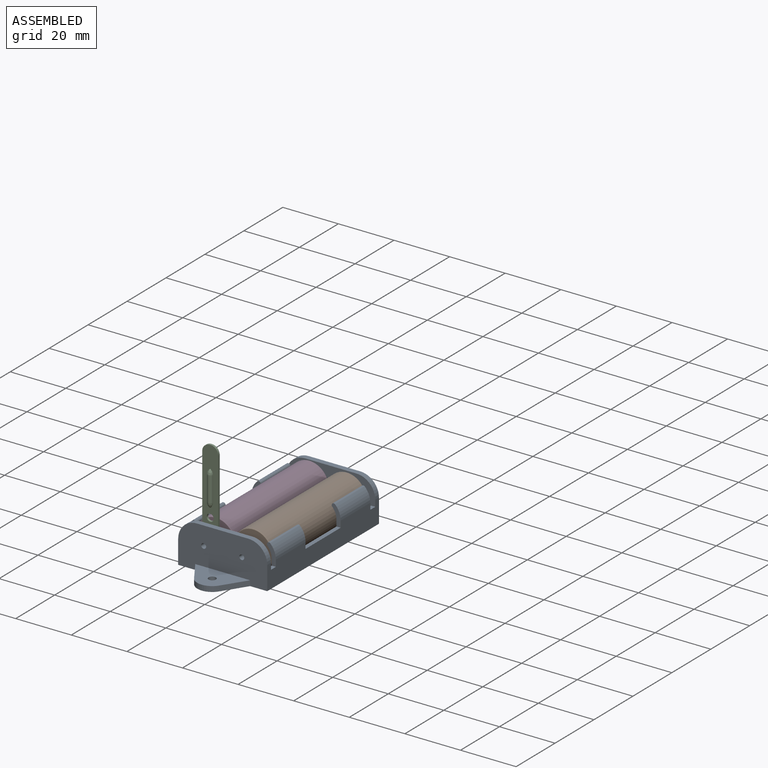
[diagram: assembled view]
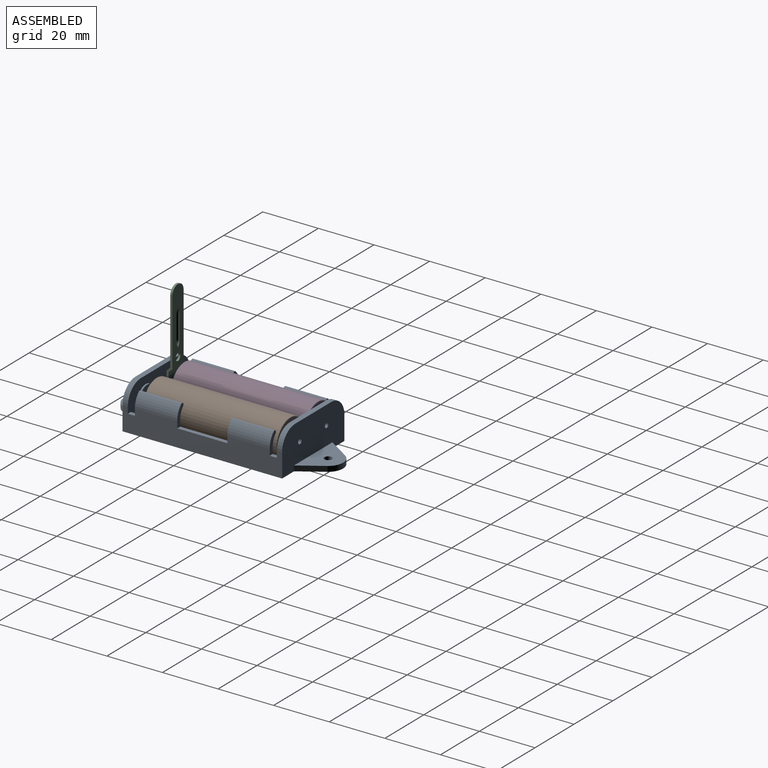
[diagram: assembled view, second angle]
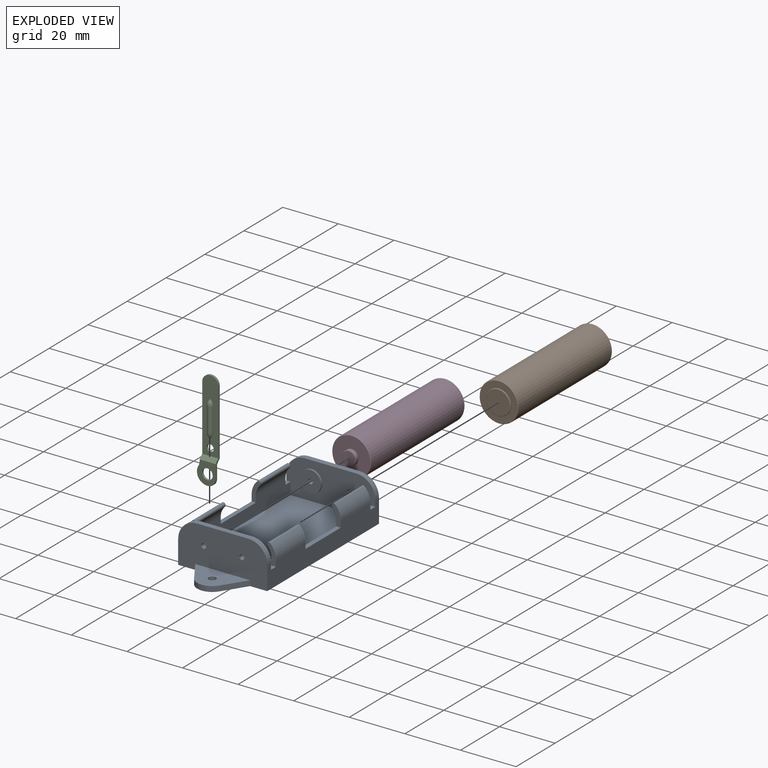
[diagram: exploded view]
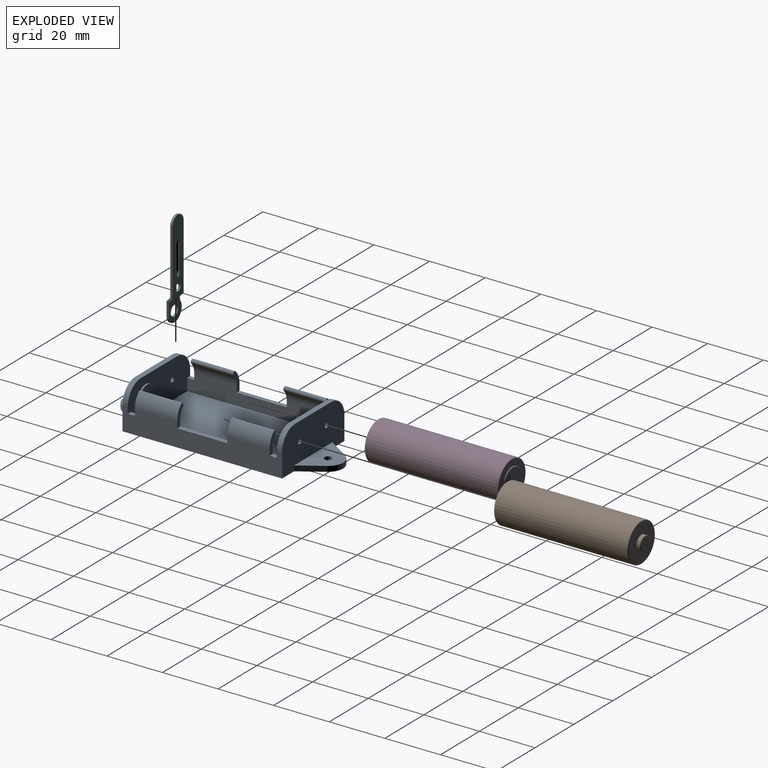
[diagram: exploded view, second angle]
ASSEMBLY  parts=4 mates=5
PART A: 60 faces, bbox 32x78.9x15.2 mm
  f0: plane 32.03x13.34mm, normal (0,1,0), area 346.4mm2, adj f2,f3,f5,f8,f14,f29,f33,f37
  f1: plane 32.03x13.34mm, normal (0,-1,0), area 346.4mm2, adj f2,f3,f4,f7,f14,f31,f33,f37
  f2: plane 57.4x8.51mm, normal (-1,0,0), area 435.6mm2, adj f0,f1,f7,f8,f9,f19,f23,f27
  f3: plane 57.4x8.51mm, normal (1,0,0), area 435.6mm2, adj f0,f1,f4,f5,f6,f19,f23,f27
  f4: cylinder r=6.73mm len=6.81mm, axis (0,-1,0), area 20.3mm2, adj f1,f3,f19,f31
  f5: cylinder r=6.73mm len=6.81mm, axis (0,-1,0), area 20.3mm2, adj f0,f3,f23,f29
  f6: cylinder r=6.73mm len=15.24mm, axis (0,-1,0), area 81mm2, adj f3,f12,f40,f44
  f7: cylinder r=6.73mm len=6.81mm, axis (0,-1,0), area 20.3mm2, adj f1,f2,f19,f31
  f8: cylinder r=6.73mm len=6.81mm, axis (0,-1,0), area 20.3mm2, adj f0,f2,f23,f29
  f9: cylinder r=6.73mm len=15.24mm, axis (0,-1,0), area 81.1mm2, adj f2,f10,f45,f50
  f10: cylinder r=0.76mm len=15.24mm, axis (0,1,0), area 36.5mm2, adj f9,f11,f45,f50
  f11: cylinder r=5.21mm len=15.24mm, axis (0,1,0), area 62.8mm2, adj f10,f33,f45,f50
  f12: cylinder r=0.72mm len=15.24mm, axis (0,1,0), area 35.7mm2, adj f6,f13,f40,f44
  f13: cylinder r=5.57mm len=15.24mm, axis (0,1,0), area 61.7mm2, adj f12,f37,f40,f44
  f14: plane 53.59x28.98mm, normal (0,0,1), area 1553.2mm2, adj f0,f1,f33,f37
  f15: plane 19.74x10.73mm, normal (0,0,1), area 129mm2, adj f16,f17,f18,f19,f24
  f16: plane 8.28x5.36mm, normal (0.84,0.54,0), area 18.8mm2, adj f15,f17,f19,f27
  f17: cylinder r=5.37mm len=9.01mm, axis (0,0,-1), area 20.4mm2, adj f15,f16,f18,f27
  f18: plane 8.28x5.36mm, normal (-0.84,0.54,0), area 18.8mm2, adj f15,f17,f19,f27
  f19: plane 32.03x15.24mm, normal (0,1,0), area 426.1mm2, adj f2,f3,f4,f7,f15,f16,f18,f27
  f20: plane 8.28x5.36mm, normal (-0.84,-0.54,0), area 18.8mm2, adj f21,f23,f26,f27
  f21: cylinder r=5.37mm len=9.01mm, axis (0,0,-1), area 20.4mm2, adj f20,f22,f26,f27
  f22: plane 8.28x5.36mm, normal (0.84,-0.54,0), area 18.8mm2, adj f21,f23,f26,f27
  f23: plane 32.03x15.24mm, normal (0,-1,0), area 426.1mm2, adj f2,f3,f5,f8,f20,f22,f26,f27
  f24: cylinder r=1.33mm len=2.67mm, axis (0,0,-1), area 16mm2, adj f15,f27
  f25: cylinder r=1.33mm len=2.67mm, axis (0,0,-1), area 16mm2, adj f26,f27
  f26: plane 19.74x10.73mm, normal (0,0,1), area 129mm2, adj f20,f21,f22,f23,f25
  f27: plane 78.87x32.03mm, normal (0,0,-1), area 2096.6mm2, adj f2,f3,f16,f17,f18,f19,f20,f21
  f28: cylinder r=6.73mm len=15.24mm, axis (0,-1,0), area 81mm2, adj f3,f35,f38,f41
  f29: plane 18.42x1.91mm, normal (0,0,1), area 35.1mm2, adj f0,f5,f8,f23
  f30: cylinder r=6.73mm len=15.24mm, axis (0,-1,0), area 81.1mm2, adj f2,f32,f47,f49
  f31: plane 18.42x1.91mm, normal (0,0,1), area 35.1mm2, adj f1,f4,f7,f19
  f32: cylinder r=0.76mm len=15.24mm, axis (0,1,0), area 36.5mm2, adj f30,f34,f47,f49
  f33: plane 53.59x6.6mm, normal (1,0,0), area 301.1mm2, adj f0,f1,f11,f14,f34,f45,f46,f47
  f34: cylinder r=5.21mm len=15.24mm, axis (0,1,0), area 62.8mm2, adj f32,f33,f47,f49
  f35: cylinder r=0.72mm len=15.24mm, axis (0,1,0), area 35.7mm2, adj f28,f36,f38,f41
  f36: cylinder r=5.57mm len=15.24mm, axis (0,1,0), area 61.7mm2, adj f35,f37,f38,f41
  f37: plane 53.59x6.6mm, normal (-1,0,0), area 301.1mm2, adj f0,f1,f13,f14,f36,f38,f39,f40
  f38: plane 7.27x3.21mm, normal (0,1,0), area 11.3mm2, adj f3,f28,f35,f36,f37,f39
  f39: plane 18.03x1.52mm, normal (0,0,1), area 27.5mm2, adj f3,f37,f38,f40
  f40: plane 7.27x3.21mm, normal (0,-1,0), area 11.3mm2, adj f3,f6,f12,f13,f37,f39
  f41: plane 7.27x3.21mm, normal (0,-1,0), area 11.3mm2, adj f3,f28,f35,f36,f37,f42
  f42: plane 2.54x1.52mm, normal (0,0,1), area 3.9mm2, adj f0,f3,f37,f41
  f43: plane 2.54x1.52mm, normal (0,0,1), area 3.9mm2, adj f1,f3,f37,f44
  f44: plane 7.27x3.21mm, normal (0,1,0), area 11.3mm2, adj f3,f6,f12,f13,f37,f43
  f45: plane 7.29x3.3mm, normal (0,-1,0), area 11.6mm2, adj f2,f9,f10,f11,f33,f46
  f46: plane 18.03x1.52mm, normal (0,0,1), area 27.5mm2, adj f2,f33,f45,f47
  f47: plane 7.29x3.3mm, normal (0,1,0), area 11.6mm2, adj f2,f30,f32,f33,f34,f46
  f48: plane 2.54x1.52mm, normal (0,0,1), area 3.9mm2, adj f0,f2,f33,f49
  f49: plane 7.29x3.3mm, normal (0,-1,0), area 11.6mm2, adj f2,f30,f32,f33,f34,f48
  f50: plane 7.29x3.3mm, normal (0,1,0), area 11.6mm2, adj f2,f9,f10,f11,f33,f51
  f51: plane 2.54x1.52mm, normal (0,0,1), area 3.9mm2, adj f1,f2,f33,f50
  f52: cylinder r=0.89mm len=1.91mm, axis (0,-1,0), area 10.6mm2, adj f1,f19
  f53: cylinder r=0.89mm len=2.54mm, axis (0,-1,0), area 14.2mm2, adj f19,f55
  f54: cylinder r=3.81mm len=7.62mm, axis (0,1,0), area 15.2mm2, adj f1,f55
  f55: plane 7.62x7.62mm, normal (0,-1,0), area 43.1mm2, adj f53,f54
  f56: cylinder r=0.89mm len=2.54mm, axis (0,1,0), area 14.2mm2, adj f23,f59
  f57: cylinder r=0.89mm len=1.91mm, axis (0,1,0), area 10.6mm2, adj f0,f23
  f58: cylinder r=3.81mm len=7.62mm, axis (0,-1,0), area 15.2mm2, adj f0,f59
  f59: plane 7.62x7.62mm, normal (0,1,0), area 43.1mm2, adj f56,f58
PART B: 11 faces, bbox 15.1x15.1x50 mm
  f0: cylinder r=7mm len=47.75mm, axis (0,0,-1), area 2099.6mm2, adj f9,f10
  f1: plane 13.49x13.49mm, normal (0,0,1), area 122.2mm2, adj f5,f10
  f2: plane 13.49x13.49mm, normal (0,0,-1), area 80.8mm2, adj f3,f9
  f3: cylinder r=4.45mm len=8.89mm, axis (0,0,1), area 3.5mm2, adj f2,f8
  f4: plane 8.38x8.38mm, normal (0,0,-1), area 55.2mm2, adj f8
  f5: cylinder r=2.57mm len=5.13mm, axis (0,0,-1), area 18.4mm2, adj f1,f7
  f6: plane 4.62x4.62mm, normal (0,0,1), area 16.8mm2, adj f7
  f7: torus R=2.31mm, axis (0,0,1), area 6.2mm2, adj f5,f6
  f8: torus R=4.19mm, axis (0,0,-1), area 10.9mm2, adj f3,f4
  f9: torus R=6.74mm, axis (0,0,1), area 17.3mm2, adj f0,f2
  f10: torus R=6.74mm, axis (0,0,1), area 17.3mm2, adj f0,f1
PART C: 23 faces, bbox 2.1x35.4x6.7 mm
  f0: plane 26.57x5.77mm, normal (1,0,0), area 127.3mm2, adj f1,f5,f7,f9,f10,f11,f16,f20
  f1: plane 0.76x0.18mm, normal (0,1,0), area 0.1mm2, adj f0,f3,f10,f11
  f2: plane 0.76x0.18mm, normal (0,-1,0), area 0.1mm2, adj f6,f8,f12,f13
  f3: plane 26.26x5.77mm, normal (-1,0,0), area 120.7mm2, adj f1,f4,f7,f9,f10,f11,f16,f17
  f4: plane 5.77x1.35mm, normal (-0.71,0.71,0), area 11mm2, adj f3,f6,f7,f9
  f5: plane 5.77x1.35mm, normal (0.71,-0.71,0), area 11mm2, adj f0,f7,f8,f9
  f6: plane 7.83x6.73mm, normal (-1,0,0), area 34.4mm2, adj f2,f4,f7,f9,f12,f13,f14,f15
  f7: plane 25.54x2.11mm, normal (0,0,-1), area 19.9mm2, adj f0,f3,f4,f5,f6,f8,f10,f14
  f8: plane 7.51x6.73mm, normal (1,0,0), area 32.5mm2, adj f2,f5,f7,f9,f12,f13,f14,f15
  f9: plane 29.85x2.11mm, normal (0,0,1), area 23.2mm2, adj f0,f3,f4,f5,f6,f8,f11,f12
  f10: cylinder r=2.79mm len=2.79mm, axis (1,0,0), area 3.3mm2, adj f0,f1,f3,f7
  f11: cylinder r=2.79mm len=2.79mm, axis (-1,0,0), area 3.3mm2, adj f0,f1,f3,f9
  f12: cylinder r=2.79mm len=2.79mm, axis (1,0,0), area 3.3mm2, adj f2,f6,f8,f9
  f13: cylinder r=3.76mm len=5.75mm, axis (1,0,0), area 6.1mm2, adj f2,f6,f8,f14
  f14: cylinder r=2.54mm len=1.35mm, axis (1,0,0), area 1.1mm2, adj f6,f7,f8,f13
  f15: cylinder r=1.91mm len=3.81mm, axis (1,0,0), area 9.1mm2, adj f6,f8
  f16: cylinder r=1.27mm len=2.54mm, axis (1,0,0), area 6.1mm2, adj f0,f3
  f17: revolved ~1.93x1.91mm, area 4.4mm2, adj f3,f18
  f18: cylinder r=0.97mm len=8.89mm, axis (0,-1,0), area 27mm2, adj f3,f17,f19
  f19: revolved ~1.93x1.91mm, area 4.4mm2, adj f3,f18
  f20: revolved ~1.91x1.52mm, area 3.3mm2, adj f0,f21
  f21: cylinder r=0.76mm len=8.89mm, axis (0,1,0), area 21.3mm2, adj f0,f20,f22
  f22: revolved ~1.91x1.52mm, area 3.3mm2, adj f0,f21
PART D: same geometry as B
PLACE A t=(-20.52,-24.34,2.82)mm fixed
PLACE B rot(axis=(-1,0,0),90deg) t=(2.36,-18.5,11.39)mm
PLACE C rot(axis=(0.58,0.58,0.58),120deg) t=(-11.27,-22.06,7.63)mm
PLACE D rot(axis=(0.87,-0.35,0.35),98.2deg) t=(-11.36,30.14,11.39)mm
MATE cylindrical B.f0 <-> A.f52  axis (0,-1,0) through (2.36,-18.88,11.39)mm
MATE planar B.f0 <-> A.f1  axis (0,1,0) through (2.36,31.16,11.39)mm
MATE cylindrical D.f0 <-> A.f53  axis (0,1,0) through (-11.36,30.52,11.39)mm
MATE revolute A.f53 <-> C.f15  axis (0,1,0) through (-11.36,-22.44,11.39)mm
MATE planar D.f0 <-> A.f53  axis (0,1,0) through (-11.36,30.52,11.39)mm
